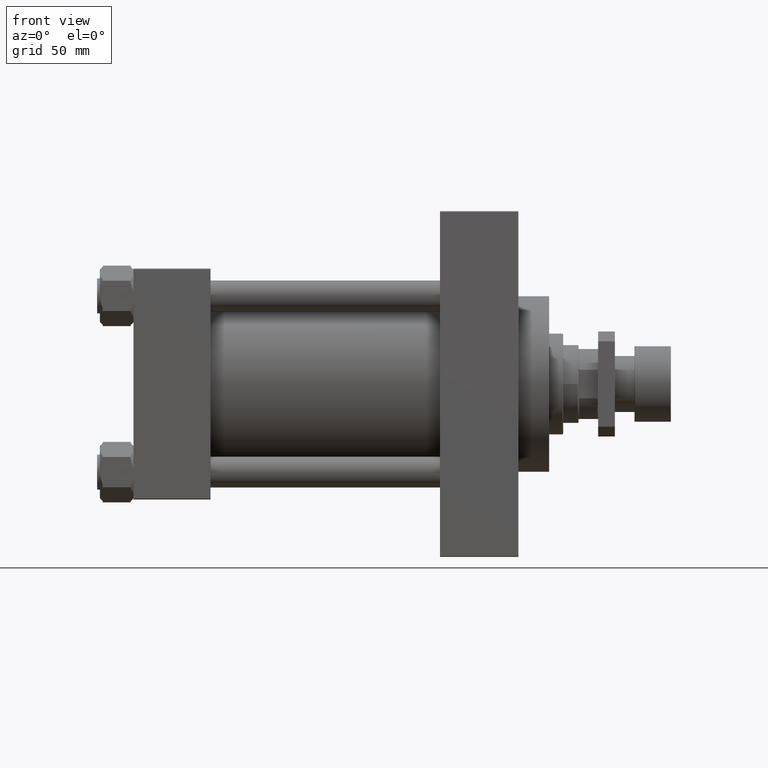
[diagram: clean part render]
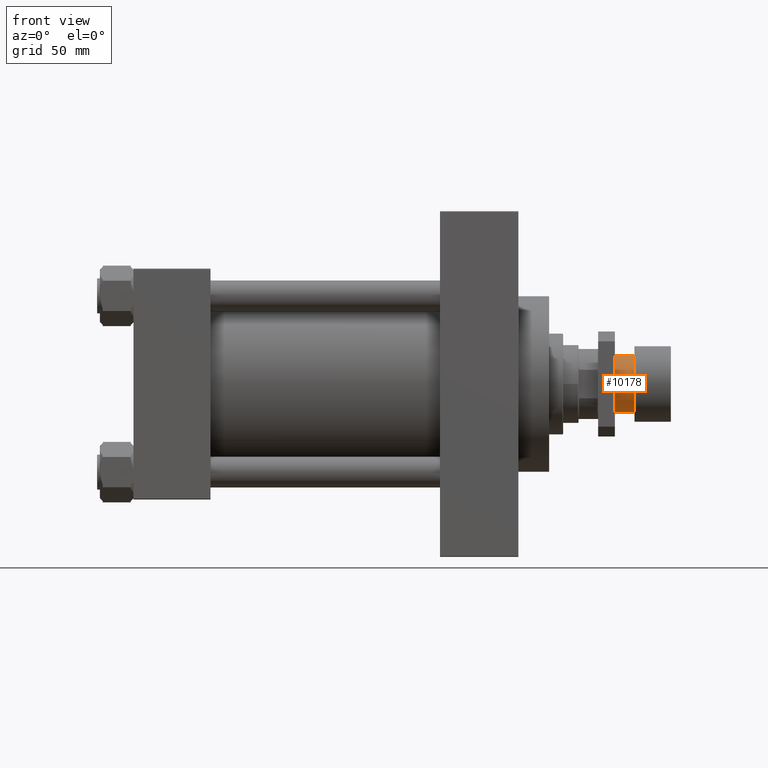
[diagram: same view with one face highlighted and labeled with its STEP entity id]
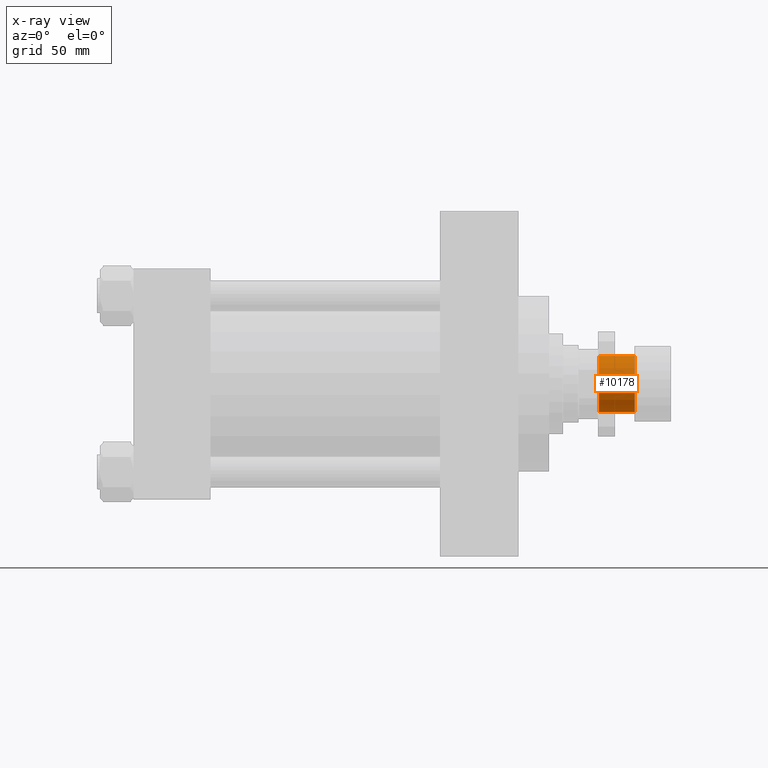
[diagram: x-ray of the same camera — body ghosted, the highlighted face saturated]
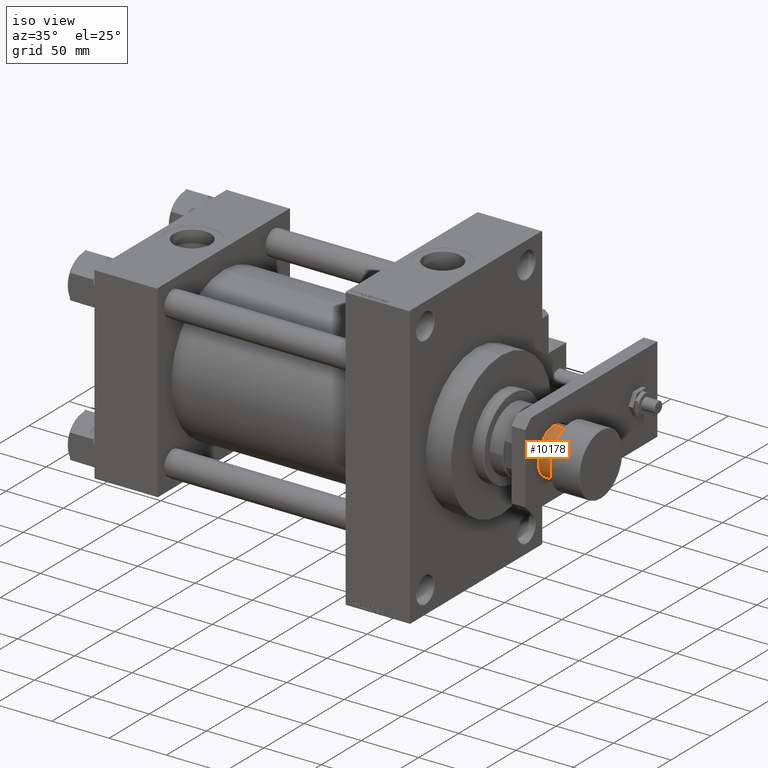
[diagram: same view with one face highlighted and labeled with its STEP entity id]
A machine part, front view. The second image highlights one B-rep face of the part: STEP entity #10178.
The next image is the same camera in x-ray: the body ghosted, the highlighted face saturated — about 0% of this face is hidden behind the body in this view.
A second angle (iso view) of the same face is appended — the face is thin or edge-on in the first view.
In plain terms, the highlighted cylindrical surface (edge-blend (fillet) strip) has radius 20 mm, axis along (1, 0, 0).
Its self-contained STEP definition (entity closure, byte-faithful):
#1810 = ORIENTED_EDGE ( 'NONE', *, *, #5518, .T. ) ;
#3344 = LINE ( 'NONE', #25113, #14066 ) ;
#5057 = CARTESIAN_POINT ( 'NONE',  ( 0.000000000000000000, 0.000000000000000000, -51.50000000000000000 ) ) ;
#5518 = EDGE_CURVE ( 'NONE', #37236, #35863, #20631, .T. ) ;
#5848 = ORIENTED_EDGE ( 'NONE', *, *, #50940, .T. ) ;
#7376 = CARTESIAN_POINT ( 'NONE',  ( 0.000000000000000000, 0.000000000000000000, -51.50000000000000000 ) ) ;
#8193 = ORIENTED_EDGE ( 'NONE', *, *, #44979, .F. ) ;
#8357 = DIRECTION ( 'NONE',  ( -1.000000000000000000, 0.000000000000000000, 0.000000000000000000 ) ) ;
#10178 = ADVANCED_FACE ( 'NONE', ( #45480 ), #49562, .T. ) ;
#12368 = EDGE_LOOP ( 'NONE', ( #18881, #8193, #5848, #1810 ) ) ;
#12981 = DIRECTION ( 'NONE',  ( 0.000000000000000000, 0.000000000000000000, -1.000000000000000000 ) ) ;
#14066 = VECTOR ( 'NONE', #15882, 1000.000000000000000 ) ;
#15084 = EDGE_CURVE ( 'NONE', #49357, #35863, #3344, .T. ) ;
#15815 = DIRECTION ( 'NONE',  ( 1.000000000000000000, 0.000000000000000000, 0.000000000000000000 ) ) ;
#15882 = DIRECTION ( 'NONE',  ( -0.000000000000000000, -0.000000000000000000, 1.000000000000000000 ) ) ;
#18881 = ORIENTED_EDGE ( 'NONE', *, *, #15084, .F. ) ;
#20631 = CIRCLE ( 'NONE', #31164, 20.00000000000000000 ) ;
#24008 = CARTESIAN_POINT ( 'NONE',  ( -20.00000000000000000, 2.449293598294706513E-15, -26.00000000000000000 ) ) ;
#24962 = DIRECTION ( 'NONE',  ( 0.000000000000000000, 0.000000000000000000, -1.000000000000000000 ) ) ;
#25113 = CARTESIAN_POINT ( 'NONE',  ( -20.00000000000000000, 2.449293598294706513E-15, -51.50000000000000000 ) ) ;
#28600 = DIRECTION ( 'NONE',  ( -0.000000000000000000, -0.000000000000000000, 1.000000000000000000 ) ) ;
#28991 = CARTESIAN_POINT ( 'NONE',  ( 20.00000000000000000, 0.000000000000000000, -51.50000000000000000 ) ) ;
#29505 = CARTESIAN_POINT ( 'NONE',  ( 20.00000000000000000, 0.000000000000000000, -51.50000000000000000 ) ) ;
#30509 = VECTOR ( 'NONE', #45601, 1000.000000000000000 ) ;
#31164 = AXIS2_PLACEMENT_3D ( 'NONE', #33660, #12981, #46194 ) ;
#33660 = CARTESIAN_POINT ( 'NONE',  ( 0.000000000000000000, 0.000000000000000000, -26.00000000000000000 ) ) ;
#33779 = CARTESIAN_POINT ( 'NONE',  ( -20.00000000000000000, 2.449293598294706513E-15, -51.50000000000000000 ) ) ;
#35863 = VERTEX_POINT ( 'NONE', #24008 ) ;
#36423 = AXIS2_PLACEMENT_3D ( 'NONE', #7376, #28600, #15815 ) ;
#37236 = VERTEX_POINT ( 'NONE', #38579 ) ;
#38579 = CARTESIAN_POINT ( 'NONE',  ( 20.00000000000000000, 0.000000000000000000, -26.00000000000000000 ) ) ;
#42595 = AXIS2_PLACEMENT_3D ( 'NONE', #5057, #24962, #8357 ) ;
#43296 = VERTEX_POINT ( 'NONE', #29505 ) ;
#44979 = EDGE_CURVE ( 'NONE', #43296, #49357, #46054, .T. ) ;
#45480 = FACE_OUTER_BOUND ( 'NONE', #12368, .T. ) ;
#45601 = DIRECTION ( 'NONE',  ( -0.000000000000000000, -0.000000000000000000, 1.000000000000000000 ) ) ;
#46054 = CIRCLE ( 'NONE', #42595, 20.00000000000000000 ) ;
#46194 = DIRECTION ( 'NONE',  ( -1.000000000000000000, 0.000000000000000000, 0.000000000000000000 ) ) ;
#49357 = VERTEX_POINT ( 'NONE', #33779 ) ;
#49562 = CYLINDRICAL_SURFACE ( 'NONE', #36423, 20.00000000000000000 ) ;
#50940 = EDGE_CURVE ( 'NONE', #43296, #37236, #53771, .T. ) ;
#53771 = LINE ( 'NONE', #28991, #30509 ) ;